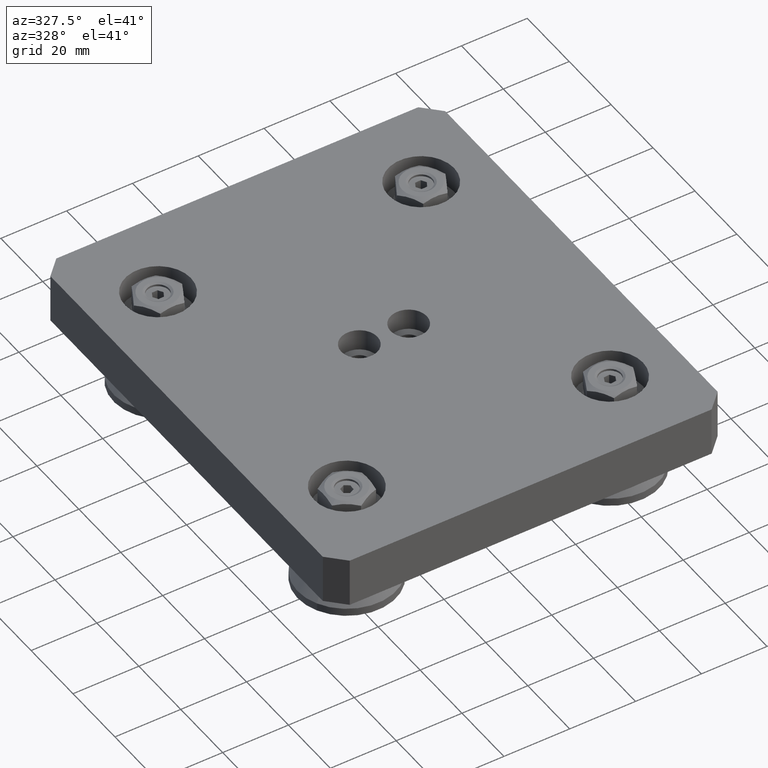
[diagram: clean part render]
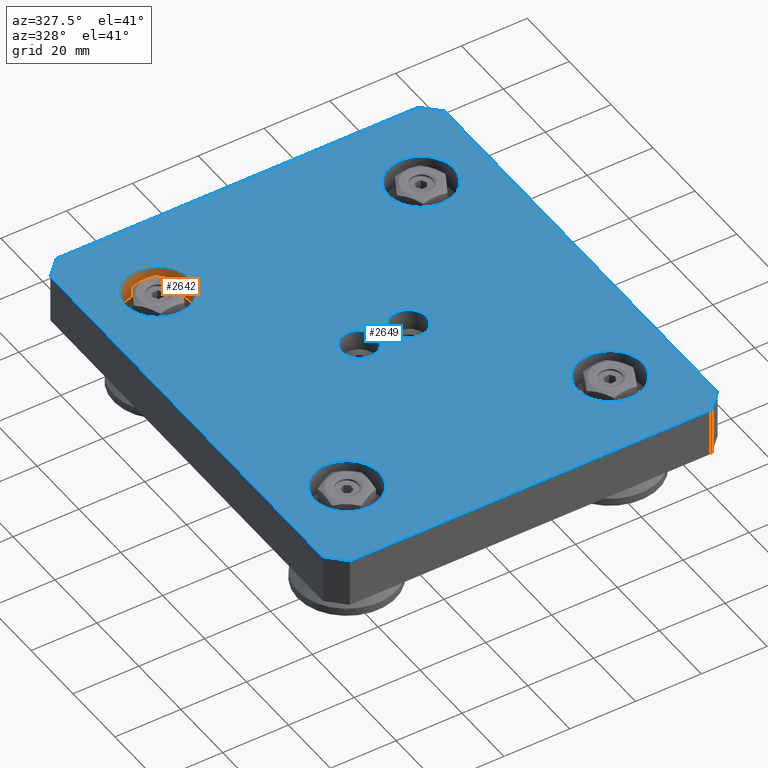
[diagram: same view with the hole feature highlighted: cylindrical wall and planar end face, labeled with their STEP entity ids]
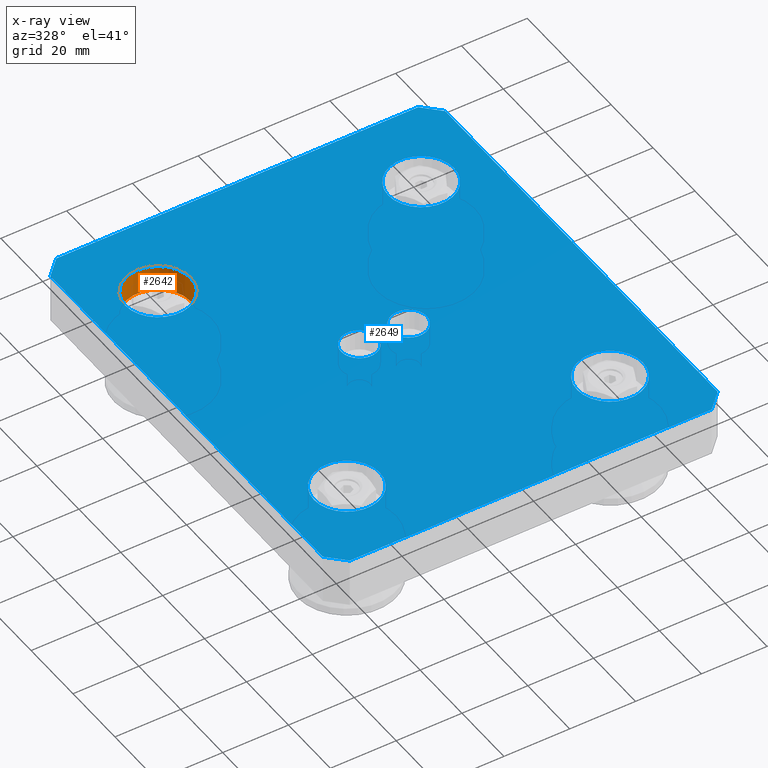
[diagram: x-ray of the same camera — body ghosted, the hole faces saturated]
A machine part, auxiliary view. The highlighted faces form one hole feature of diameter 20 mm: the cylindrical wall (entity #2642, orange) and its adjacent planar end face (entity #2649, blue) — they share a circular edge in the B-rep.
The next image is the same camera in x-ray (body ghosted, the hole faces saturated) — the bore reads through the body.
Wall:
#139=CYLINDRICAL_SURFACE('',#3028,10.);
#240=CIRCLE('',#3026,10.);
#242=CIRCLE('',#3029,10.);
#385=FACE_OUTER_BOUND('',#567,.T.);
#567=EDGE_LOOP('',(#1862,#1863,#1864,#1865));
#777=LINE('',#4329,#992);
#992=VECTOR('',#3443,10.);
#1211=VERTEX_POINT('',#4322);
#1213=VERTEX_POINT('',#4327);
#1460=EDGE_CURVE('',#1211,#1211,#240,.T.);
#1462=EDGE_CURVE('',#1213,#1213,#242,.T.);
#1463=EDGE_CURVE('',#1213,#1211,#777,.T.);
#1862=ORIENTED_EDGE('',*,*,#1462,.F.);
#1863=ORIENTED_EDGE('',*,*,#1463,.T.);
#1864=ORIENTED_EDGE('',*,*,#1460,.F.);
#1865=ORIENTED_EDGE('',*,*,#1463,.F.);
#2642=ADVANCED_FACE('',(#385),#139,.F.);
#3026=AXIS2_PLACEMENT_3D('',#4323,#3435,#3436);
#3028=AXIS2_PLACEMENT_3D('',#4326,#3439,#3440);
#3029=AXIS2_PLACEMENT_3D('',#4328,#3441,#3442);
#3435=DIRECTION('center_axis',(0.,0.,1.));
#3436=DIRECTION('ref_axis',(1.,0.,0.));
#3439=DIRECTION('center_axis',(0.,0.,1.));
#3440=DIRECTION('ref_axis',(1.,0.,0.));
#3441=DIRECTION('center_axis',(0.,0.,-1.));
#3442=DIRECTION('ref_axis',(1.,0.,0.));
#3443=DIRECTION('',(0.,0.,-1.));
#4322=CARTESIAN_POINT('',(-50.,45.05,7.));
#4323=CARTESIAN_POINT('Origin',(-40.,45.05,7.));
#4326=CARTESIAN_POINT('Origin',(-40.,45.05,11.));
#4327=CARTESIAN_POINT('',(-50.,45.05,15.));
#4328=CARTESIAN_POINT('Origin',(-40.,45.05,15.));
#4329=CARTESIAN_POINT('',(-50.,45.05,11.));
End face:
#194=FACE_BOUND('',#576,.T.);
#195=FACE_BOUND('',#577,.T.);
#196=FACE_BOUND('',#578,.T.);
#197=FACE_BOUND('',#579,.T.);
#198=FACE_BOUND('',#580,.T.);
#199=FACE_BOUND('',#581,.T.);
#230=CIRCLE('',#3005,5.5);
#233=CIRCLE('',#3011,5.5);
#236=CIRCLE('',#3017,10.);
#239=CIRCLE('',#3023,10.);
#242=CIRCLE('',#3029,10.);
#245=CIRCLE('',#3035,10.);
#392=FACE_OUTER_BOUND('',#575,.T.);
#575=EDGE_LOOP('',(#1888,#1889,#1890,#1891,#1892,#1893,#1894,#1895));
#576=EDGE_LOOP('',(#1896));
#577=EDGE_LOOP('',(#1897));
#578=EDGE_LOOP('',(#1898));
#579=EDGE_LOOP('',(#1899));
#580=EDGE_LOOP('',(#1900));
#581=EDGE_LOOP('',(#1901));
#747=LINE('',#4223,#962);
#753=LINE('',#4234,#968);
#760=LINE('',#4262,#975);
#763=LINE('',#4267,#978);
#765=LINE('',#4271,#980);
#767=LINE('',#4275,#982);
#781=LINE('',#4344,#996);
#782=LINE('',#4346,#997);
#962=VECTOR('',#3331,10.);
#968=VECTOR('',#3339,10.);
#975=VECTOR('',#3362,10.);
#978=VECTOR('',#3367,10.);
#980=VECTOR('',#3371,10.);
#982=VECTOR('',#3375,10.);
#996=VECTOR('',#3463,10.);
#997=VECTOR('',#3466,10.);
#1177=VERTEX_POINT('',#4221);
#1178=VERTEX_POINT('',#4222);
#1182=VERTEX_POINT('',#4232);
#1194=VERTEX_POINT('',#4260);
#1195=VERTEX_POINT('',#4261);
#1196=VERTEX_POINT('',#4266);
#1197=VERTEX_POINT('',#4270);
#1198=VERTEX_POINT('',#4274);
#1201=VERTEX_POINT('',#4283);
#1204=VERTEX_POINT('',#4294);
#1207=VERTEX_POINT('',#4305);
#1210=VERTEX_POINT('',#4316);
#1213=VERTEX_POINT('',#4327);
#1216=VERTEX_POINT('',#4338);
#1412=EDGE_CURVE('',#1177,#1178,#747,.T.);
#1418=EDGE_CURVE('',#1182,#1177,#753,.T.);
#1431=EDGE_CURVE('',#1194,#1195,#760,.T.);
#1434=EDGE_CURVE('',#1195,#1196,#763,.T.);
#1436=EDGE_CURVE('',#1196,#1197,#765,.T.);
#1438=EDGE_CURVE('',#1198,#1182,#767,.T.);
#1442=EDGE_CURVE('',#1201,#1201,#230,.T.);
#1447=EDGE_CURVE('',#1204,#1204,#233,.T.);
#1452=EDGE_CURVE('',#1207,#1207,#236,.T.);
#1457=EDGE_CURVE('',#1210,#1210,#239,.T.);
#1462=EDGE_CURVE('',#1213,#1213,#242,.T.);
#1467=EDGE_CURVE('',#1216,#1216,#245,.T.);
#1470=EDGE_CURVE('',#1197,#1198,#781,.T.);
#1471=EDGE_CURVE('',#1178,#1194,#782,.T.);
#1888=ORIENTED_EDGE('',*,*,#1412,.F.);
#1889=ORIENTED_EDGE('',*,*,#1418,.F.);
#1890=ORIENTED_EDGE('',*,*,#1438,.F.);
#1891=ORIENTED_EDGE('',*,*,#1470,.F.);
#1892=ORIENTED_EDGE('',*,*,#1436,.F.);
#1893=ORIENTED_EDGE('',*,*,#1434,.F.);
#1894=ORIENTED_EDGE('',*,*,#1431,.F.);
#1895=ORIENTED_EDGE('',*,*,#1471,.F.);
#1896=ORIENTED_EDGE('',*,*,#1442,.T.);
#1897=ORIENTED_EDGE('',*,*,#1447,.T.);
#1898=ORIENTED_EDGE('',*,*,#1452,.T.);
#1899=ORIENTED_EDGE('',*,*,#1457,.T.);
#1900=ORIENTED_EDGE('',*,*,#1462,.T.);
#1901=ORIENTED_EDGE('',*,*,#1467,.T.);
#2537=PLANE('',#3039);
#2649=ADVANCED_FACE('',(#392,#194,#195,#196,#197,#198,#199),#2537,.T.);
#3005=AXIS2_PLACEMENT_3D('',#4284,#3385,#3386);
#3011=AXIS2_PLACEMENT_3D('',#4295,#3399,#3400);
#3017=AXIS2_PLACEMENT_3D('',#4306,#3413,#3414);
#3023=AXIS2_PLACEMENT_3D('',#4317,#3427,#3428);
#3029=AXIS2_PLACEMENT_3D('',#4328,#3441,#3442);
#3035=AXIS2_PLACEMENT_3D('',#4339,#3455,#3456);
#3039=AXIS2_PLACEMENT_3D('',#4347,#3467,#3468);
#3331=DIRECTION('',(0.707106781186548,0.707106781186548,0.));
#3339=DIRECTION('',(0.,1.,0.));
#3362=DIRECTION('',(0.707106781186548,-0.707106781186548,0.));
#3367=DIRECTION('',(0.,-1.,0.));
#3371=DIRECTION('',(-0.707106781186548,-0.707106781186548,0.));
#3375=DIRECTION('',(-0.707106781186548,0.707106781186548,0.));
#3385=DIRECTION('center_axis',(0.,0.,-1.));
#3386=DIRECTION('ref_axis',(1.,0.,0.));
#3399=DIRECTION('center_axis',(0.,0.,-1.));
#3400=DIRECTION('ref_axis',(1.,0.,0.));
#3413=DIRECTION('center_axis',(0.,0.,-1.));
#3414=DIRECTION('ref_axis',(1.,0.,0.));
#3427=DIRECTION('center_axis',(0.,0.,-1.));
#3428=DIRECTION('ref_axis',(1.,0.,0.));
#3441=DIRECTION('center_axis',(0.,0.,-1.));
#3442=DIRECTION('ref_axis',(1.,0.,0.));
#3455=DIRECTION('center_axis',(0.,0.,-1.));
#3456=DIRECTION('ref_axis',(1.,0.,0.));
#3463=DIRECTION('',(-1.,0.,0.));
#3466=DIRECTION('',(1.,0.,0.));
#3467=DIRECTION('center_axis',(0.,0.,1.));
#3468=DIRECTION('ref_axis',(1.,0.,0.));
#4221=CARTESIAN_POINT('',(-60.,65.,15.));
#4222=CARTESIAN_POINT('',(-55.,70.,15.));
#4223=CARTESIAN_POINT('',(-60.,65.,15.));
#4232=CARTESIAN_POINT('',(-60.,-65.,15.));
#4234=CARTESIAN_POINT('',(-60.,-70.,15.));
#4260=CARTESIAN_POINT('',(55.,70.,15.));
#4261=CARTESIAN_POINT('',(60.,65.,15.));
#4262=CARTESIAN_POINT('',(60.,65.,15.));
#4266=CARTESIAN_POINT('',(60.,-65.,15.));
#4267=CARTESIAN_POINT('',(60.,70.,15.));
#4270=CARTESIAN_POINT('',(55.,-70.,15.));
#4271=CARTESIAN_POINT('',(60.,-65.,15.));
#4274=CARTESIAN_POINT('',(-55.,-70.,15.));
#4275=CARTESIAN_POINT('',(-60.,-65.,15.));
#4283=CARTESIAN_POINT('',(2.,-6.73555739531044E-16,15.));
#4284=CARTESIAN_POINT('Origin',(7.5,0.,15.));
#4294=CARTESIAN_POINT('',(-13.,-6.73555739531044E-16,15.));
#4295=CARTESIAN_POINT('Origin',(-7.5,0.,15.));
#4305=CARTESIAN_POINT('',(30.,-45.05,15.));
#4306=CARTESIAN_POINT('Origin',(40.,-45.05,15.));
#4316=CARTESIAN_POINT('',(30.,45.05,15.));
#4317=CARTESIAN_POINT('Origin',(40.,45.05,15.));
#4327=CARTESIAN_POINT('',(-50.,45.05,15.));
#4328=CARTESIAN_POINT('Origin',(-40.,45.05,15.));
#4338=CARTESIAN_POINT('',(-50.,-45.05,15.));
#4339=CARTESIAN_POINT('Origin',(-40.,-45.05,15.));
#4344=CARTESIAN_POINT('',(60.,-70.,15.));
#4346=CARTESIAN_POINT('',(-60.,70.,15.));
#4347=CARTESIAN_POINT('Origin',(0.,-9.16128090250129E-16,15.));